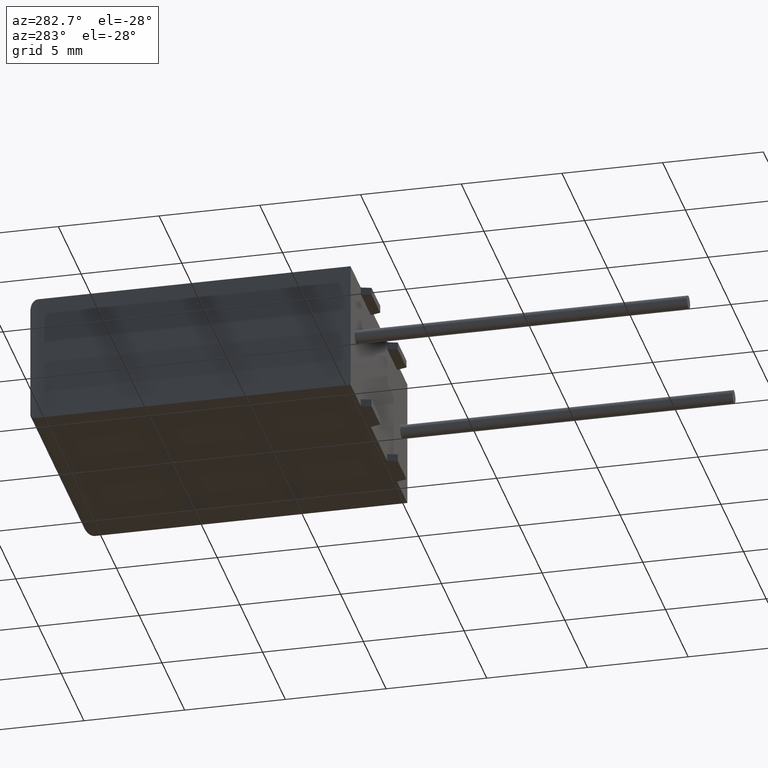
[diagram: clean part render]
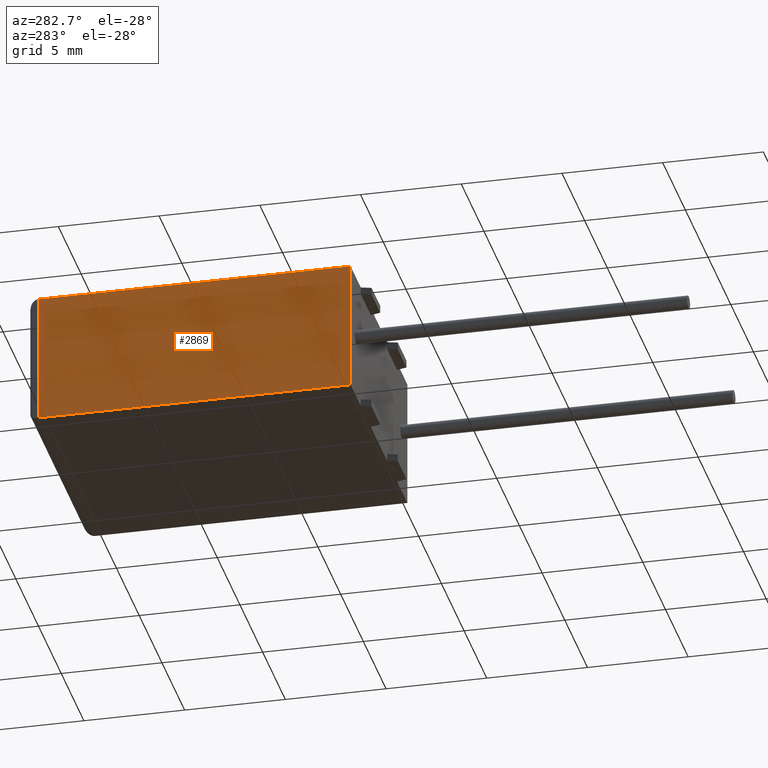
[diagram: same view with one face highlighted and labeled with its STEP entity id]
A machine part, auxiliary view. The second image highlights one B-rep face of the part: STEP entity #2869.
In plain terms, the highlighted planar face has unit normal (1, 0, 0).
Its self-contained STEP definition (entity closure, byte-faithful):
#101 = ORIENTED_EDGE ( 'NONE', *, *, #3018, .F. ) ;
#164 = LINE ( 'NONE', #1880, #1227 ) ;
#185 = VERTEX_POINT ( 'NONE', #845 ) ;
#193 = CARTESIAN_POINT ( 'NONE',  ( 0.0000000000000000000, 15.50000000000000000, 0.0000000000000000000 ) ) ;
#222 = AXIS2_PLACEMENT_3D ( 'NONE', #1209, #1476, #3191 ) ;
#227 = ORIENTED_EDGE ( 'NONE', *, *, #1046, .T. ) ;
#277 = DIRECTION ( 'NONE',  ( 0.0000000000000000000, 0.0000000000000000000, -1.000000000000000000 ) ) ;
#288 = LINE ( 'NONE', #926, #1552 ) ;
#414 = VECTOR ( 'NONE', #3065, 1000.000000000000000 ) ;
#429 = PLANE ( 'NONE',  #222 ) ;
#792 = ORIENTED_EDGE ( 'NONE', *, *, #2292, .F. ) ;
#845 = CARTESIAN_POINT ( 'NONE',  ( 0.0000000000000000000, 0.0000000000000000000, 6.500000000000000000 ) ) ;
#926 = CARTESIAN_POINT ( 'NONE',  ( 0.0000000000000000000, 0.0000000000000000000, 6.500000000000000000 ) ) ;
#1046 = EDGE_CURVE ( 'NONE', #2289, #1976, #164, .T. ) ;
#1174 = DIRECTION ( 'NONE',  ( -0.0000000000000000000, -0.0000000000000000000, -1.000000000000000000 ) ) ;
#1209 = CARTESIAN_POINT ( 'NONE',  ( 0.0000000000000000000, 0.0000000000000000000, 6.500000000000000000 ) ) ;
#1227 = VECTOR ( 'NONE', #2130, 1000.000000000000000 ) ;
#1261 = EDGE_LOOP ( 'NONE', ( #101, #1534, #227, #792 ) ) ;
#1466 = LINE ( 'NONE', #1758, #2816 ) ;
#1476 = DIRECTION ( 'NONE',  ( 1.000000000000000000, 0.0000000000000000000, 0.0000000000000000000 ) ) ;
#1534 = ORIENTED_EDGE ( 'NONE', *, *, #2428, .T. ) ;
#1552 = VECTOR ( 'NONE', #1174, 1000.000000000000000 ) ;
#1758 = CARTESIAN_POINT ( 'NONE',  ( 0.0000000000000000000, 15.50000000000000000, 6.500000000000000000 ) ) ;
#1880 = CARTESIAN_POINT ( 'NONE',  ( 0.0000000000000000000, 0.0000000000000000000, 0.0000000000000000000 ) ) ;
#1976 = VERTEX_POINT ( 'NONE', #3056 ) ;
#2079 = FACE_OUTER_BOUND ( 'NONE', #1261, .T. ) ;
#2130 = DIRECTION ( 'NONE',  ( -0.0000000000000000000, -1.000000000000000000, -0.0000000000000000000 ) ) ;
#2289 = VERTEX_POINT ( 'NONE', #193 ) ;
#2292 = EDGE_CURVE ( 'NONE', #185, #1976, #288, .T. ) ;
#2319 = CARTESIAN_POINT ( 'NONE',  ( 0.0000000000000000000, 15.50000000000000000, 6.500000000000000000 ) ) ;
#2428 = EDGE_CURVE ( 'NONE', #2695, #2289, #1466, .T. ) ;
#2567 = LINE ( 'NONE', #2569, #414 ) ;
#2569 = CARTESIAN_POINT ( 'NONE',  ( 0.0000000000000000000, 0.0000000000000000000, 6.500000000000000000 ) ) ;
#2695 = VERTEX_POINT ( 'NONE', #2319 ) ;
#2816 = VECTOR ( 'NONE', #277, 1000.000000000000000 ) ;
#2869 = ADVANCED_FACE ( 'NONE', ( #2079 ), #429, .F. ) ;
#3018 = EDGE_CURVE ( 'NONE', #2695, #185, #2567, .T. ) ;
#3056 = CARTESIAN_POINT ( 'NONE',  ( 0.0000000000000000000, 0.0000000000000000000, 0.0000000000000000000 ) ) ;
#3065 = DIRECTION ( 'NONE',  ( -0.0000000000000000000, -1.000000000000000000, -0.0000000000000000000 ) ) ;
#3191 = DIRECTION ( 'NONE',  ( 0.0000000000000000000, 0.0000000000000000000, -1.000000000000000000 ) ) ;